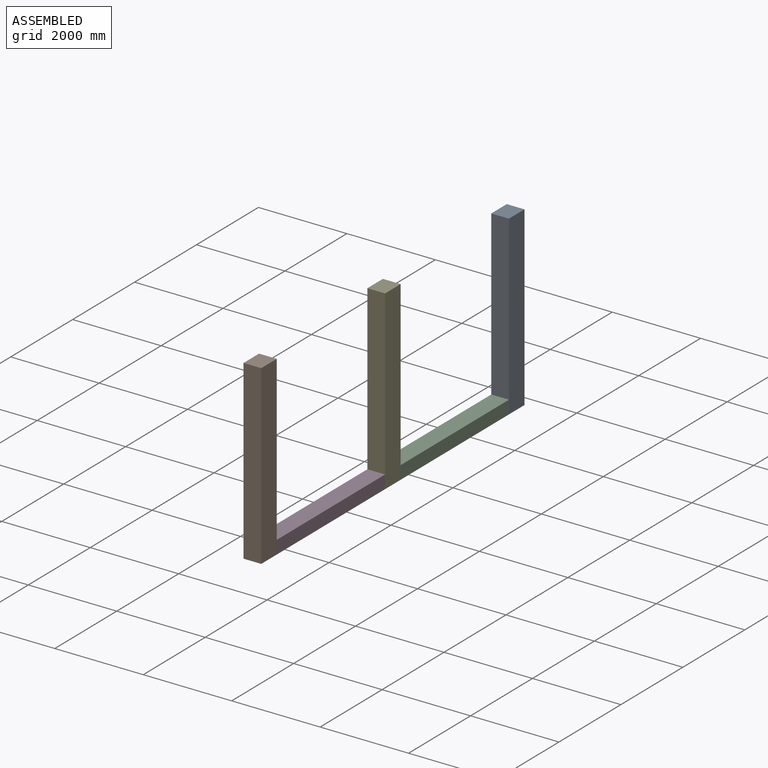
[diagram: assembled view]
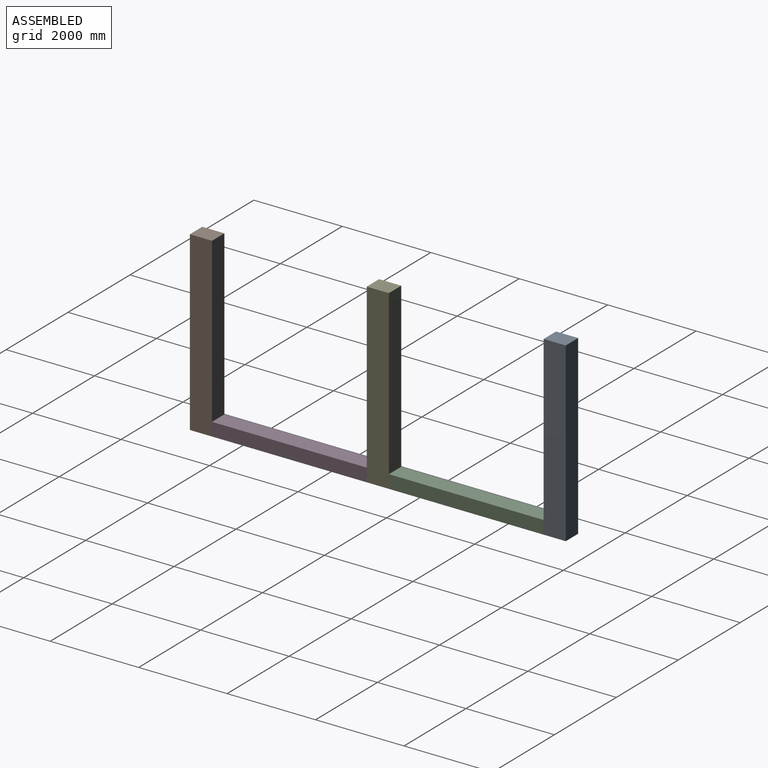
[diagram: assembled view, second angle]
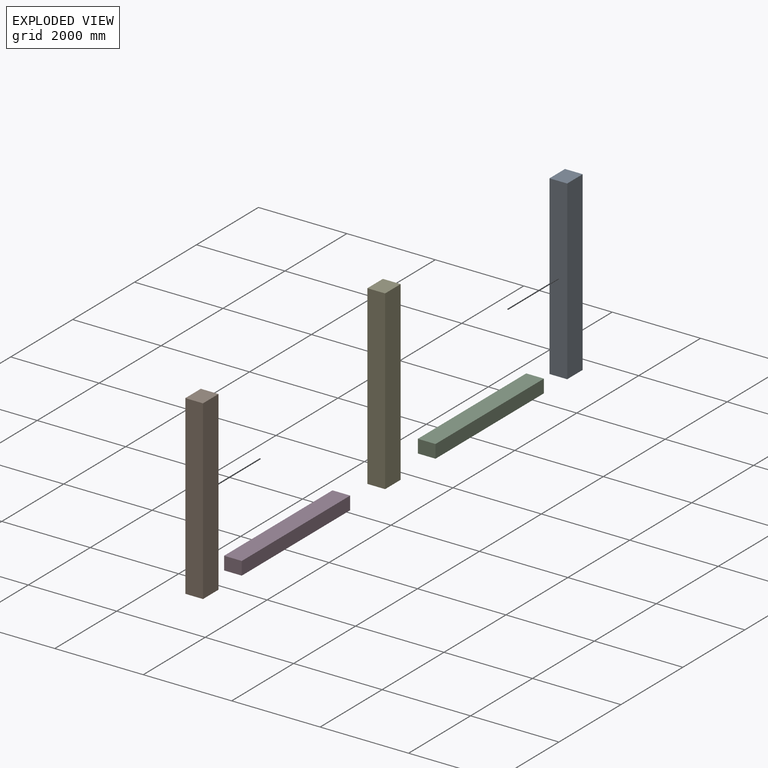
[diagram: exploded view]
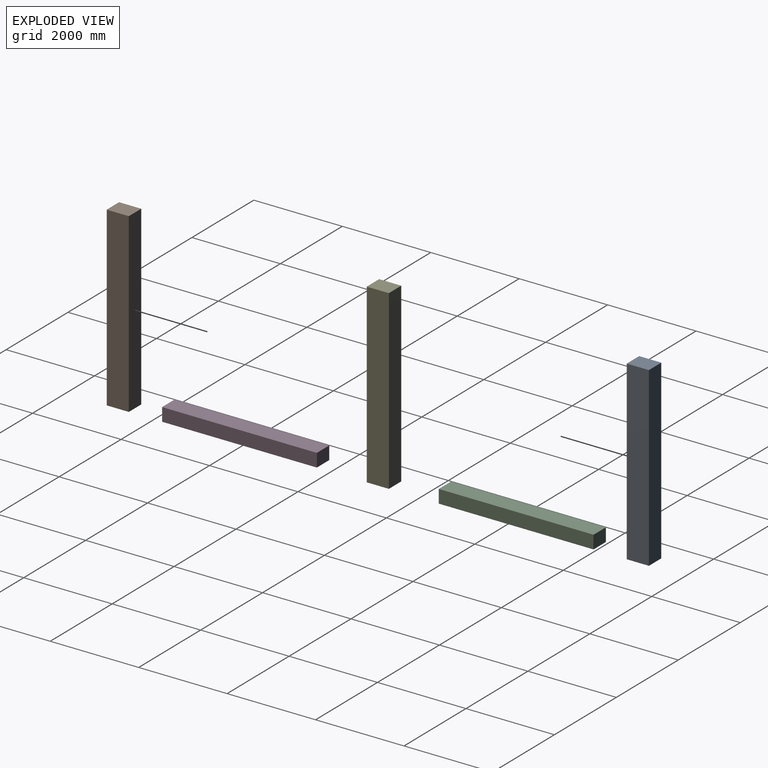
[diagram: exploded view, second angle]
ASSEMBLY  parts=5 mates=4
PART A: 6 faces, bbox 400x4000x500 mm
  f0: plane 4000x500mm, normal (1,0,0), area 2000000mm2, adj f1,f3,f4,f5
  f1: plane 4000x400mm, normal (0,0,1), area 1600000mm2, adj f0,f2,f4,f5
  f2: plane 4000x500mm, normal (-1,0,0), area 2000000mm2, adj f1,f3,f4,f5
  f3: plane 4000x400mm, normal (0,0,-1), area 1600000mm2, adj f0,f2,f4,f5
  f4: plane 500x400mm, normal (0,1,0), area 200000mm2, adj f0,f1,f2,f3
  f5: plane 500x400mm, normal (0,-1,0), area 200000mm2, adj f0,f1,f2,f3
PART B: same geometry as A
PART C: 6 faces, bbox 400x3500x300 mm
  f0: plane 3500x300mm, normal (1,0,0), area 1050000mm2, adj f1,f3,f4,f5
  f1: plane 3500x400mm, normal (0,0,1), area 1400000mm2, adj f0,f2,f4,f5
  f2: plane 3500x300mm, normal (-1,0,0), area 1050000mm2, adj f1,f3,f4,f5
  f3: plane 3500x400mm, normal (0,0,-1), area 1400000mm2, adj f0,f2,f4,f5
  f4: plane 400x300mm, normal (0,1,0), area 120000mm2, adj f0,f1,f2,f3
  f5: plane 400x300mm, normal (0,-1,0), area 120000mm2, adj f0,f1,f2,f3
PART D: same geometry as C
PART E: same geometry as A
PLACE A rot(axis=(1,0,0),90deg) t=(-1020.01,9232.18,-1631.94)mm
PLACE B rot(axis=(-1,0,0),90deg) t=(-1020.01,1232.18,2368.06)mm
PLACE C t=(-1020.01,5482.18,-1481.94)mm
PLACE D t=(-1020.01,1482.18,-1481.94)mm
PLACE E rot(axis=(1,0,0),90deg) t=(-1020.01,5232.18,-1631.94)mm
MATE fastened E.f1 <-> D.f4  axis (0,-1,0) through (-1020.01,4982.18,-1631.94)mm
MATE fastened A.f1 <-> C.f4  axis (0,-1,0) through (-1020.01,8982.18,-1631.94)mm
MATE fastened C.f5 <-> E.f3  axis (0,-1,0) through (-1020.01,5482.18,-1631.94)mm
MATE fastened D.f5 <-> B.f1  axis (0,-1,0) through (-1020.01,1482.18,-1631.94)mm
